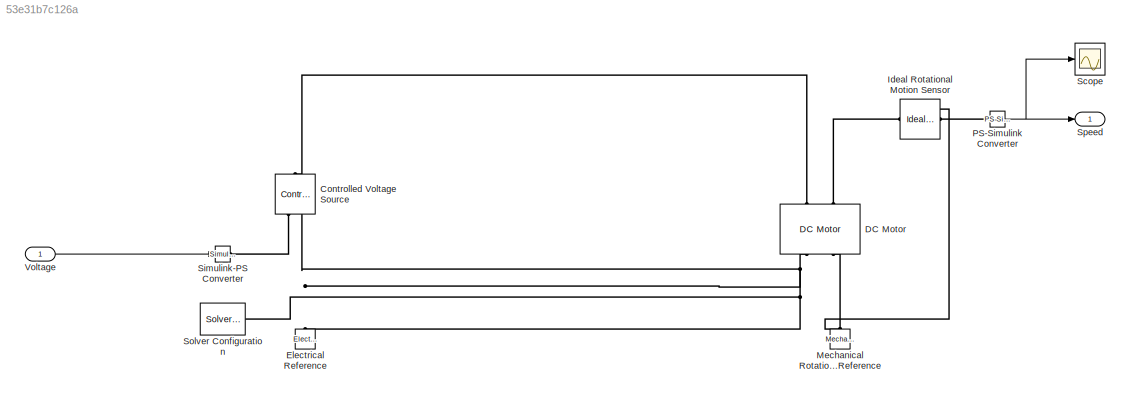
MODEL slx_53e31b7c126a
KIND model
CONFIG AbsTol = auto
CONFIG EnableMultiTasking = off
CONFIG FixedStep = auto
CONFIG MaxStep = auto
CONFIG MinStep = auto
CONFIG RelTol = 1e-3
CONFIG SampleTimeConstraint = Unconstrained
CONFIG SolverName = VariableStepAuto
CONFIG StartTime = 0.0
CONFIG StopTime = 10.0
BLOCK [Reference] Controlled Voltage Source  REF=fl_lib/Electrical/Electrical Sources/Controlled Voltage
Source
  NameLocation = right
  Ports = [0, 0, 0, 0, 0, 1, 2]
  SourceBlock = fl_lib/Electrical/Electrical Sources/Controlled Voltage\nSource
  SourceProductBaseCode = SS
  SourceType = Controlled Voltage\nSource
BLOCK [Reference] DC Motor  REF=ee_lib/Electromechanical/Brushed Motors/DC Motor
  NameLocation = right
  Ports = [0, 0, 0, 0, 0, 2, 2]
  SourceBlock = ee_lib/Electromechanical/Brushed Motors/DC Motor
  SourceProductBaseCode = PS
  SourceType = DC Motor
BLOCK [Reference] Electrical Reference  REF=fl_lib/Electrical/Electrical Elements/Electrical Reference
  NameLocation = right
  Ports = [0, 0, 0, 0, 0, 1]
  SourceBlock = fl_lib/Electrical/Electrical Elements/Electrical Reference
  SourceProductBaseCode = SS
  SourceType = Electrical Reference
BLOCK [Reference] Ideal Rotational Motion Sensor  REF=fl_lib/Mechanical/Mechanical Sensors/Ideal Rotational
Motion Sensor
  Ports = [0, 0, 0, 0, 0, 1, 3]
  SourceBlock = fl_lib/Mechanical/Mechanical Sensors/Ideal Rotational\nMotion Sensor
  SourceProductBaseCode = SS
  SourceType = Ideal Rotational\nMotion Sensor
BLOCK [Reference] Mechanical Rotational Reference  REF=fl_lib/Mechanical/Rotational Elements/Mechanical
Rotational Reference
  NameLocation = right
  Ports = [0, 0, 0, 0, 0, 1]
  SourceBlock = fl_lib/Mechanical/Rotational Elements/Mechanical\nRotational Reference
  SourceProductBaseCode = SS
  SourceType = Mechanical\nRotational Reference
BLOCK [Reference] PS-Simulink Converter  REF=nesl_utility/PS-Simulink
Converter
  Ports = [0, 1, 0, 0, 0, 1]
  SourceBlock = nesl_utility/PS-Simulink\nConverter
  SourceProductBaseCode = PW,SS
  SourceType = PS-Simulink\nConverter
BLOCK [Scope] Scope
  Floating = off
  NumInputPorts = 1
  Ports = [1]
  ScopeSpecificationString = Simulink.scopes.TimeScopeBlockCfg('CurrentConfiguration', extmgr.ConfigurationSet(extmgr.Configuration('Core','General UI',true),extmgr.Configuration('Core','Source UI',true),extmgr.Configuration('Sources','WiredSimulink',true),extmgr.Configuration('Visuals','Time Domain',true),extmgr.Configuration('Tools','Plot Navigation',true),extmgr.Configuration('Tools','Measurements',true)),'Version','2021a'...<+1ch>
BLOCK [Reference] Simulink-PS Converter  REF=nesl_utility/Simulink-PS
Converter
  Ports = [1, 0, 0, 0, 0, 0, 1]
  SourceBlock = nesl_utility/Simulink-PS\nConverter
  SourceProductBaseCode = PW,SS
  SourceType = Simulink-PS\nConverter
BLOCK [Reference] Solver Configuration  REF=nesl_utility/Solver
Configuration
  Ports = [0, 0, 0, 0, 0, 0, 1]
  SourceBlock = nesl_utility/Solver\nConfiguration
  SourceProductBaseCode = PW,SS
  SourceType = Solver\nConfiguration
BLOCK [Outport] Speed
BLOCK [Inport] Voltage
NET PS-Simulink Converter:1 -> Scope:1, Speed:1
LINE Voltage:1 -> Simulink-PS Converter:1
PLINE Controlled Voltage Source:LConn1 -- DC Motor:LConn1
PLINE Controlled Voltage Source:RConn1 -- Simulink-PS Converter:RConn1
PNET net1: Controlled Voltage Source:RConn2 -- DC Motor:RConn1 -- Electrical Reference:LConn1 -- Solver Configuration:RConn1
PLINE DC Motor:LConn2 -- Ideal Rotational Motion Sensor:LConn1
PNET net2: DC Motor:RConn2 -- Ideal Rotational Motion Sensor:RConn1 -- Mechanical Rotational Reference:LConn1
PLINE Ideal Rotational Motion Sensor:RConn2 -- PS-Simulink Converter:LConn1
note: NET lines group one-source signal fan-out (src -> all destinations, sorted); 1:1 wires keep LINE; PNET lines group multi-terminal physical nets as a canonical sorted terminal list (undirected conserving connections); 2-terminal nets keep the pairwise PLINE form
